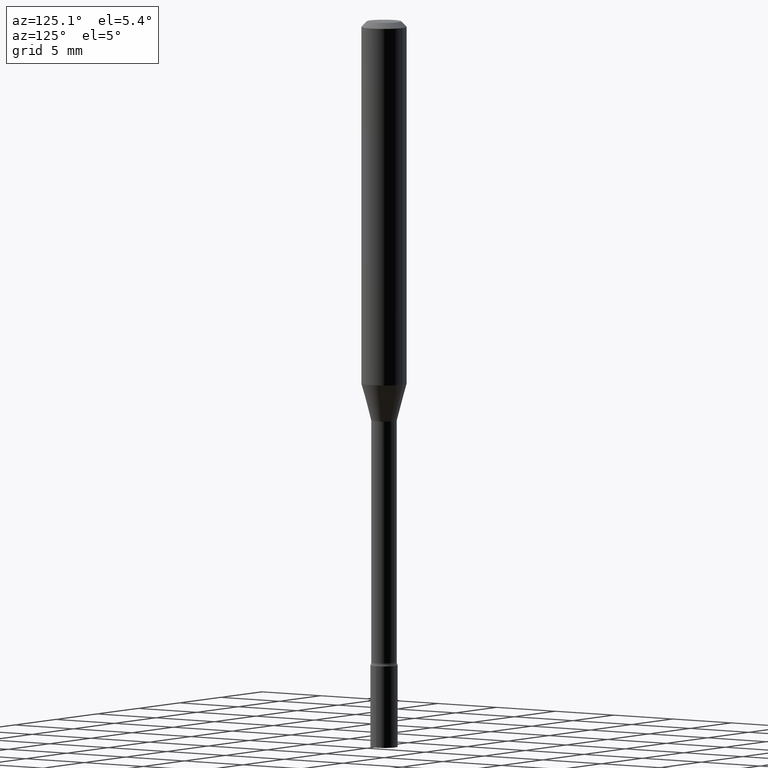
[diagram: clean part render]
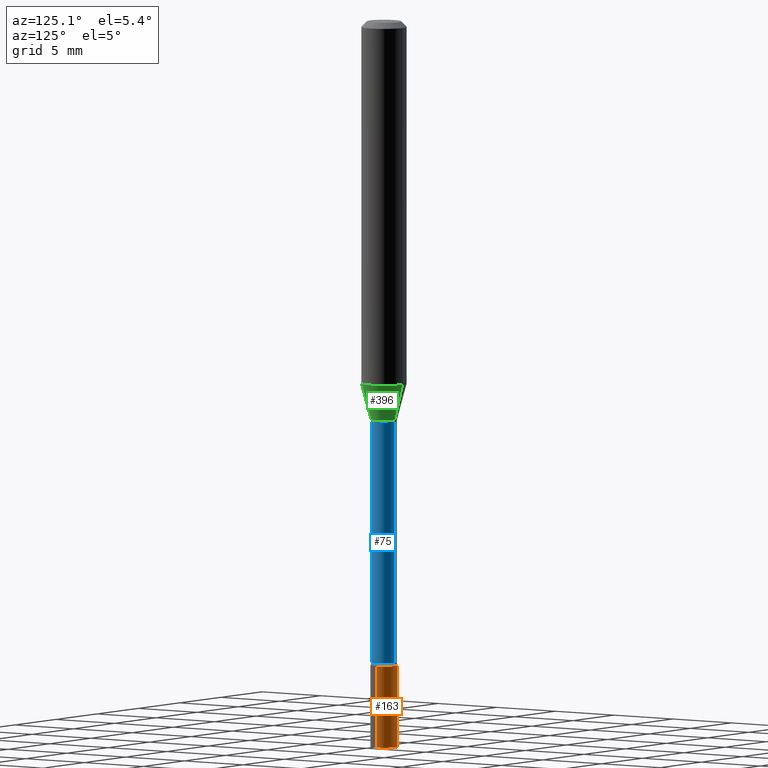
[diagram: same view with three faces highlighted in distinct colors, each labeled with its STEP entity id]
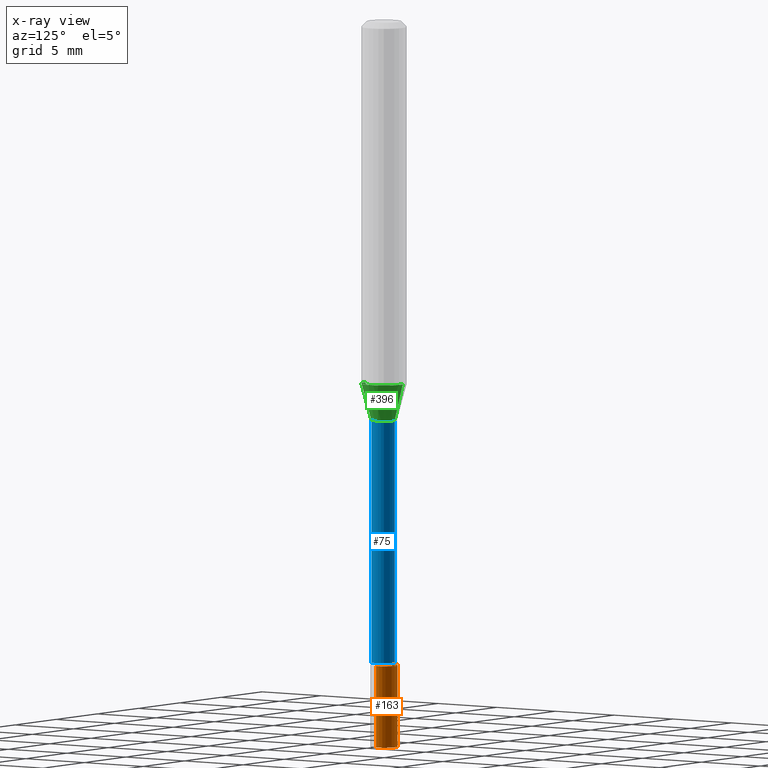
[diagram: x-ray of the same camera — body ghosted, the three highlighted faces saturated]
A machine part, auxiliary view with three faces highlighted in distinct colors.
The next image is the same camera in x-ray (body ghosted, the three faces saturated) — at least one of them is partly hidden behind the body in this view.
Their STEP definitions:

[orange] entity #163 — the highlighted cylindrical surface (edge-blend (fillet) strip) has radius 0.9525 mm, axis along (-0, 0, 1).
#6 = VECTOR ( 'NONE', #322, 39.37007874015748143 ) ;
#8 = LINE ( 'NONE', #447, #256 ) ;
#28 = EDGE_CURVE ( 'NONE', #500, #60, #216, .T. ) ;
#48 = CARTESIAN_POINT ( 'NONE',  ( -0.03749999999999999861, 2.664535259100375598E-16, -1.844600658845589458E-30 ) ) ;
#49 = CARTESIAN_POINT ( 'NONE',  ( -0.03749999999999999861, -6.323717501156401251E-15, -2.000000000000000000 ) ) ;
#60 = VERTEX_POINT ( 'NONE', #307 ) ;
#62 = CIRCLE ( 'NONE', #419, 0.03749999999999999861 ) ;
#83 = CARTESIAN_POINT ( 'NONE',  ( 0.000000000000000000, 0.000000000000000000, 0.000000000000000000 ) ) ;
#88 = CARTESIAN_POINT ( 'NONE',  ( 0.03749999999999999861, -7.244823778099525378E-15, -2.000000000000000000 ) ) ;
#90 = EDGE_CURVE ( 'NONE', #363, #496, #62, .T. ) ;
#115 = AXIS2_PLACEMENT_3D ( 'NONE', #273, #418, #186 ) ;
#138 = ORIENTED_EDGE ( 'NONE', *, *, #28, .F. ) ;
#163 = ADVANCED_FACE ( 'NONE', ( #279 ), #436, .T. ) ;
#173 = ORIENTED_EDGE ( 'NONE', *, *, #429, .T. ) ;
#186 = DIRECTION ( 'NONE',  ( 1.000000000000000000, -6.982962677686268288E-15, 0.000000000000000000 ) ) ;
#191 = AXIS2_PLACEMENT_3D ( 'NONE', #83, #244, #285 ) ;
#209 = CARTESIAN_POINT ( 'NONE',  ( 0.03749999999999999861, -6.459240476859818795E-15, -1.775000000000000133 ) ) ;
#214 = LINE ( 'NONE', #48, #6 ) ;
#216 = CIRCLE ( 'NONE', #115, 0.03749999999999999861 ) ;
#222 = DIRECTION ( 'NONE',  ( 1.000000000000000000, -6.982962677686268288E-15, 0.000000000000000000 ) ) ;
#244 = DIRECTION ( 'NONE',  ( -2.445468806185136597E-29, 3.491481338843145583E-15, 1.000000000000000000 ) ) ;
#256 = VECTOR ( 'NONE', #290, 39.37007874015748143 ) ;
#273 = CARTESIAN_POINT ( 'NONE',  ( 4.340707130978617347E-29, -6.197379376446583794E-15, -1.775000000000000133 ) ) ;
#279 = FACE_OUTER_BOUND ( 'NONE', #324, .T. ) ;
#285 = DIRECTION ( 'NONE',  ( 1.000000000000000000, -6.982962677686266711E-15, 4.876176775795935793E-29 ) ) ;
#290 = DIRECTION ( 'NONE',  ( -2.445468806185136877E-29, 3.491481338843145188E-15, 1.000000000000000000 ) ) ;
#307 = CARTESIAN_POINT ( 'NONE',  ( -0.03749999999999999861, -6.323717501156401251E-15, -1.775000000000000133 ) ) ;
#322 = DIRECTION ( 'NONE',  ( -2.445468806185136877E-29, 3.491481338843145188E-15, 1.000000000000000000 ) ) ;
#324 = EDGE_LOOP ( 'NONE', ( #455, #173, #138, #437 ) ) ;
#344 = EDGE_CURVE ( 'NONE', #363, #500, #8, .T. ) ;
#363 = VERTEX_POINT ( 'NONE', #88 ) ;
#374 = DIRECTION ( 'NONE',  ( -2.445468806185136597E-29, 3.491481338843145583E-15, 1.000000000000000000 ) ) ;
#418 = DIRECTION ( 'NONE',  ( -2.445468806185136597E-29, 3.491481338843145583E-15, 1.000000000000000000 ) ) ;
#419 = AXIS2_PLACEMENT_3D ( 'NONE', #513, #374, #222 ) ;
#429 = EDGE_CURVE ( 'NONE', #496, #60, #214, .T. ) ;
#436 = CYLINDRICAL_SURFACE ( 'NONE', #191, 0.03749999999999999861 ) ;
#437 = ORIENTED_EDGE ( 'NONE', *, *, #344, .F. ) ;
#447 = CARTESIAN_POINT ( 'NONE',  ( 0.03749999999999999861, -2.618611004132350016E-16, 1.828566290923475922E-30 ) ) ;
#455 = ORIENTED_EDGE ( 'NONE', *, *, #90, .T. ) ;
#496 = VERTEX_POINT ( 'NONE', #49 ) ;
#500 = VERTEX_POINT ( 'NONE', #209 ) ;
#513 = CARTESIAN_POINT ( 'NONE',  ( 4.890937612370273194E-29, -6.982962677686291165E-15, -2.000000000000000000 ) ) ;

[blue] entity #75 — the highlighted cylindrical surface (edge-blend (fillet) strip) has radius 0.8954 mm, axis along (-0, 0, 1).
#14 = ORIENTED_EDGE ( 'NONE', *, *, #178, .T. ) ;
#16 = VERTEX_POINT ( 'NONE', #465 ) ;
#75 = ADVANCED_FACE ( 'NONE', ( #144 ), #99, .T. ) ;
#82 = DIRECTION ( 'NONE',  ( -2.445546321764708525E-29, 3.491370332121285738E-15, 1.000000000000000000 ) ) ;
#86 = ORIENTED_EDGE ( 'NONE', *, *, #319, .F. ) ;
#91 = DIRECTION ( 'NONE',  ( -2.445546321764708245E-29, 3.491370332121285738E-15, 1.000000000000000000 ) ) ;
#99 = CYLINDRICAL_SURFACE ( 'NONE', #311, 0.03525000000000003825 ) ;
#103 = CIRCLE ( 'NONE', #401, 0.03525000000000008682 ) ;
#116 = VECTOR ( 'NONE', #91, 39.37007874015748143 ) ;
#118 = DIRECTION ( 'NONE',  ( -6.982962677686266711E-15, -1.000000000000000000, 0.000000000000000000 ) ) ;
#120 = LINE ( 'NONE', #169, #206 ) ;
#125 = CARTESIAN_POINT ( 'NONE',  ( 2.504663143554355873E-16, 0.03525000000000003825, -1.230708042072754750E-16 ) ) ;
#141 = ORIENTED_EDGE ( 'NONE', *, *, #410, .F. ) ;
#144 = FACE_OUTER_BOUND ( 'NONE', #385, .T. ) ;
#147 = VERTEX_POINT ( 'NONE', #468 ) ;
#169 = CARTESIAN_POINT ( 'NONE',  ( -2.461494343884411737E-16, -0.03525000000000003825, 1.230708042072754750E-16 ) ) ;
#177 = VERTEX_POINT ( 'NONE', #320 ) ;
#178 = EDGE_CURVE ( 'NONE', #177, #16, #103, .T. ) ;
#200 = AXIS2_PLACEMENT_3D ( 'NONE', #493, #449, #218 ) ;
#201 = CARTESIAN_POINT ( 'NONE',  ( -2.461494343884138594E-16, -0.03525000000000384076, -1.101974787463810834 ) ) ;
#206 = VECTOR ( 'NONE', #487, 39.37007874015748143 ) ;
#218 = DIRECTION ( 'NONE',  ( -6.982962677686265133E-15, -1.000000000000000000, 3.874961693140799059E-15 ) ) ;
#257 = VERTEX_POINT ( 'NONE', #201 ) ;
#311 = AXIS2_PLACEMENT_3D ( 'NONE', #370, #346, #378 ) ;
#319 = EDGE_CURVE ( 'NONE', #177, #257, #120, .T. ) ;
#320 = CARTESIAN_POINT ( 'NONE',  ( -2.461494343883982794E-16, -0.03525000000000625550, -1.767098259685360606 ) ) ;
#345 = CIRCLE ( 'NONE', #200, 0.03524999999999999661 ) ;
#346 = DIRECTION ( 'NONE',  ( -2.445546321764708525E-29, 3.491370332121285738E-15, 1.000000000000000000 ) ) ;
#370 = CARTESIAN_POINT ( 'NONE',  ( 0.000000000000000000, 0.000000000000000000, 0.000000000000000000 ) ) ;
#375 = ORIENTED_EDGE ( 'NONE', *, *, #421, .T. ) ;
#378 = DIRECTION ( 'NONE',  ( -6.982962677686266711E-15, -1.000000000000000000, 3.491370332121286133E-15 ) ) ;
#385 = EDGE_LOOP ( 'NONE', ( #14, #375, #141, #86 ) ) ;
#392 = CARTESIAN_POINT ( 'NONE',  ( 4.321520649170351713E-29, -6.169594437808623412E-15, -1.767098259685360606 ) ) ;
#401 = AXIS2_PLACEMENT_3D ( 'NONE', #392, #82, #118 ) ;
#410 = EDGE_CURVE ( 'NONE', #257, #147, #345, .T. ) ;
#421 = EDGE_CURVE ( 'NONE', #16, #147, #490, .T. ) ;
#449 = DIRECTION ( 'NONE',  ( -2.445546321764708525E-29, 3.491370332121285738E-15, 1.000000000000000000 ) ) ;
#465 = CARTESIAN_POINT ( 'NONE',  ( 2.584599201327800595E-16, 0.03524999999999392508, -1.767098259685360606 ) ) ;
#468 = CARTESIAN_POINT ( 'NONE',  ( 2.504663143554787774E-16, 0.03524999999999615247, -1.101974787463811056 ) ) ;
#487 = DIRECTION ( 'NONE',  ( -2.445546321764708245E-29, 3.491370332121285738E-15, 1.000000000000000000 ) ) ;
#490 = LINE ( 'NONE', #125, #116 ) ;
#493 = CARTESIAN_POINT ( 'NONE',  ( 2.694930388159568916E-29, -3.847402079696808984E-15, -1.101974787463810834 ) ) ;

[green] entity #396 — the highlighted conical surface has half-angle 15 deg.
#2 = CARTESIAN_POINT ( 'NONE',  ( 3.490935988483243741E-16, 0.03576111260566013778, -1.098092501787273356 ) ) ;
#3 = ORIENTED_EDGE ( 'NONE', *, *, #247, .F. ) ;
#11 = ORIENTED_EDGE ( 'NONE', *, *, #150, .T. ) ;
#32 = VERTEX_POINT ( 'NONE', #272 ) ;
#40 = AXIS2_PLACEMENT_3D ( 'NONE', #399, #310, #473 ) ;
#50 = CARTESIAN_POINT ( 'NONE',  ( 2.685436078703272105E-29, -3.833847582664925383E-15, -1.098092501787273134 ) ) ;
#56 = FACE_OUTER_BOUND ( 'NONE', #76, .T. ) ;
#69 = DIRECTION ( 'NONE',  ( -2.445546321764708525E-29, 3.491370332121285738E-15, 1.000000000000000000 ) ) ;
#76 = EDGE_LOOP ( 'NONE', ( #11, #78, #3, #93 ) ) ;
#78 = ORIENTED_EDGE ( 'NONE', *, *, #295, .T. ) ;
#87 = VECTOR ( 'NONE', #506, 39.37007874015748143 ) ;
#93 = ORIENTED_EDGE ( 'NONE', *, *, #121, .F. ) ;
#105 = CARTESIAN_POINT ( 'NONE',  ( 2.685436078703272105E-29, -3.833847582664925383E-15, -1.098092501787273134 ) ) ;
#109 = AXIS2_PLACEMENT_3D ( 'NONE', #105, #69, #229 ) ;
#121 = EDGE_CURVE ( 'NONE', #32, #170, #461, .T. ) ;
#145 = CIRCLE ( 'NONE', #40, 0.06250000000000000000 ) ;
#150 = EDGE_CURVE ( 'NONE', #32, #210, #327, .T. ) ;
#154 = LINE ( 'NONE', #318, #349 ) ;
#170 = VERTEX_POINT ( 'NONE', #479 ) ;
#210 = VERTEX_POINT ( 'NONE', #2 ) ;
#211 = DIRECTION ( 'NONE',  ( -2.445546321764708525E-29, 3.491370332121285738E-15, 1.000000000000000000 ) ) ;
#229 = DIRECTION ( 'NONE',  ( -6.982962677686265133E-15, -1.000000000000000000, 3.819579138641765120E-15 ) ) ;
#230 = CONICAL_SURFACE ( 'NONE', #268, 0.03576111260566397498, 0.2617993877991499629 ) ;
#247 = EDGE_CURVE ( 'NONE', #170, #333, #145, .T. ) ;
#252 = DIRECTION ( 'NONE',  ( -6.982962677686265133E-15, -1.000000000000000000, 3.819579138641765120E-15 ) ) ;
#268 = AXIS2_PLACEMENT_3D ( 'NONE', #50, #211, #252 ) ;
#272 = CARTESIAN_POINT ( 'NONE',  ( -2.497185146378605472E-16, -0.03576111260566780525, -1.098092501787272912 ) ) ;
#295 = EDGE_CURVE ( 'NONE', #210, #333, #154, .T. ) ;
#310 = DIRECTION ( 'NONE',  ( -2.445546321764708525E-29, 3.491370332121285738E-15, 1.000000000000000000 ) ) ;
#318 = CARTESIAN_POINT ( 'NONE',  ( 2.540979878465616281E-16, 0.03576111260566013778, -1.098092501787273356 ) ) ;
#327 = CIRCLE ( 'NONE', #109, 0.03576111260566397498 ) ;
#333 = VERTEX_POINT ( 'NONE', #364 ) ;
#349 = VECTOR ( 'NONE', #518, 39.37007874015748854 ) ;
#364 = CARTESIAN_POINT ( 'NONE',  ( 4.440892098500869722E-16, 0.06249999999999652361, -0.9983016154937485176 ) ) ;
#396 = ADVANCED_FACE ( 'NONE', ( #56 ), #230, .T. ) ;
#399 = CARTESIAN_POINT ( 'NONE',  ( 2.441392843782502609E-29, -3.485440642843624235E-15, -0.9983016154937482955 ) ) ;
#425 = CARTESIAN_POINT ( 'NONE',  ( -2.497185146378605472E-16, -0.03576111260566780525, -1.098092501787272912 ) ) ;
#461 = LINE ( 'NONE', #425, #87 ) ;
#473 = DIRECTION ( 'NONE',  ( -6.982962677686265922E-15, -1.000000000000000000, 4.370956789862821150E-15 ) ) ;
#479 = CARTESIAN_POINT ( 'NONE',  ( -4.364351673553671654E-16, -0.06250000000000346945, -0.9983016154937480735 ) ) ;
#506 = DIRECTION ( 'NONE',  ( -1.807323732225328167E-15, -0.2588190451025179084, 0.9659258262890690894 ) ) ;
#518 = DIRECTION ( 'NONE',  ( 1.839019923739597949E-15, 0.2588190451025246253, 0.9659258262890670910 ) ) ;